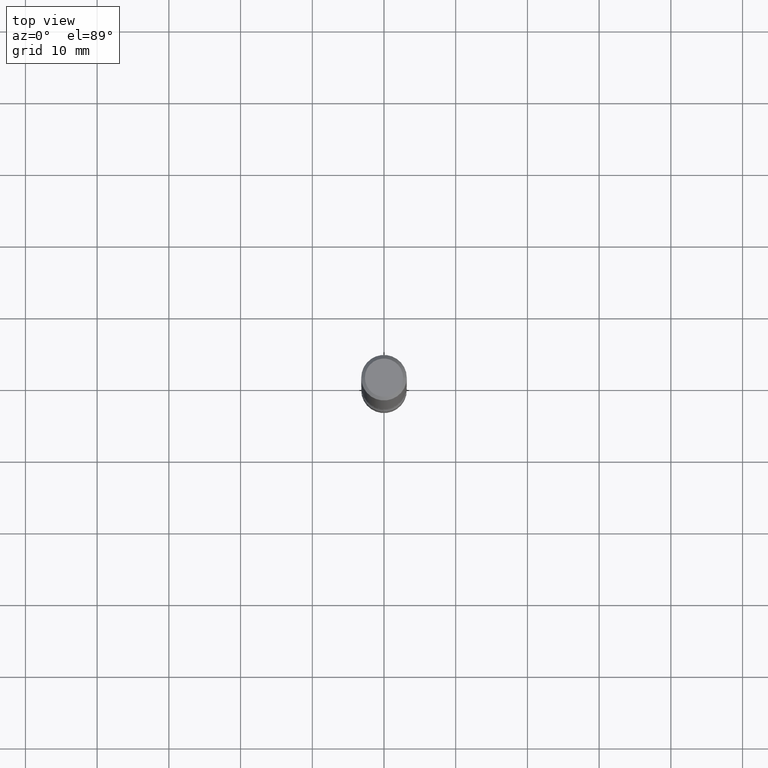
[diagram: clean part render]
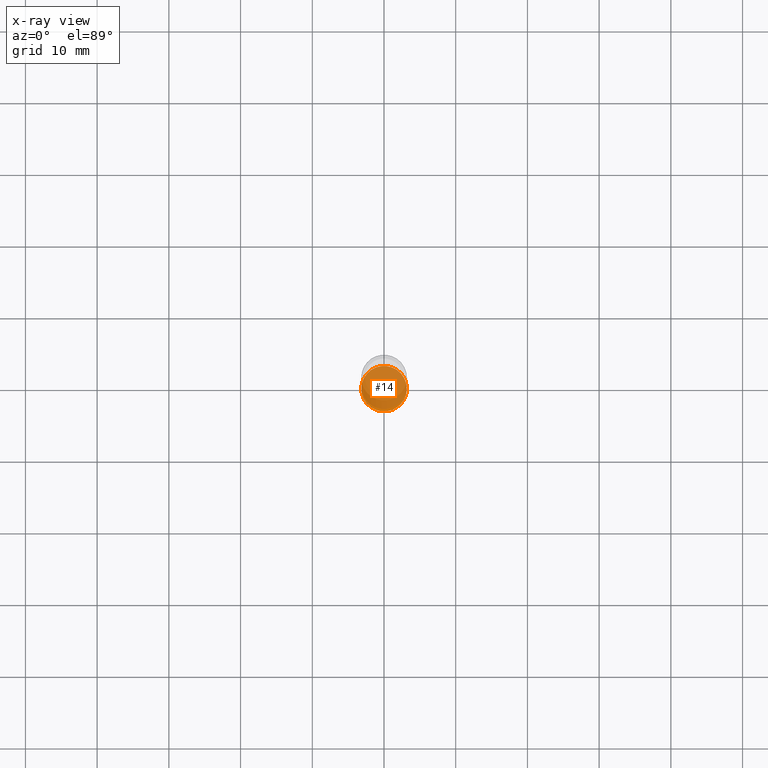
[diagram: x-ray — body ghosted, one internal face saturated and labeled with its STEP entity id]
A machine part, top view, then the same camera in x-ray: the body is ghosted and one INTERNAL B-rep face — a face not visible from any outside direction — is saturated and labeled: STEP entity #14.
In plain terms, the highlighted planar face has unit normal (0, -0, -1).
Its self-contained STEP definition (entity closure, byte-faithful):
#14 = ADVANCED_FACE ( 'NONE', ( #505 ), #41, .F. ) ;
#30 = AXIS2_PLACEMENT_3D ( 'NONE', #172, #335, #213 ) ;
#41 = PLANE ( 'NONE',  #30 ) ;
#44 = EDGE_LOOP ( 'NONE', ( #373, #478 ) ) ;
#83 = CARTESIAN_POINT ( 'NONE',  ( 8.559140821647976968E-29, -1.222018468595100619E-14, -3.499999999999999112 ) ) ;
#95 = AXIS2_PLACEMENT_3D ( 'NONE', #273, #112, #239 ) ;
#96 = AXIS2_PLACEMENT_3D ( 'NONE', #83, #374, #422 ) ;
#112 = DIRECTION ( 'NONE',  ( -2.445468806185136597E-29, 3.491481338843145583E-15, 1.000000000000000000 ) ) ;
#172 = CARTESIAN_POINT ( 'NONE',  ( 1.924192066693497233E-28, 3.078164078568847721E-15, -3.499999999999999112 ) ) ;
#213 = DIRECTION ( 'NONE',  ( -1.000000000000000000, 6.982962677686265922E-15, -4.876176775795935793E-29 ) ) ;
#215 = CARTESIAN_POINT ( 'NONE',  ( -0.1250000000000001665, -1.216996178757323895E-14, -3.499999999999999112 ) ) ;
#239 = DIRECTION ( 'NONE',  ( 1.000000000000000000, -6.982962677686269077E-15, 0.000000000000000000 ) ) ;
#273 = CARTESIAN_POINT ( 'NONE',  ( 8.559140821647976968E-29, -1.222018468595100619E-14, -3.499999999999999112 ) ) ;
#335 = DIRECTION ( 'NONE',  ( 2.438088387897960049E-29, -3.491481338843145188E-15, -1.000000000000000000 ) ) ;
#349 = EDGE_CURVE ( 'NONE', #459, #434, #414, .T. ) ;
#373 = ORIENTED_EDGE ( 'NONE', *, *, #536, .T. ) ;
#374 = DIRECTION ( 'NONE',  ( -2.445468806185136597E-29, 3.491481338843145583E-15, 1.000000000000000000 ) ) ;
#414 = CIRCLE ( 'NONE', #95, 0.1250000000000001665 ) ;
#422 = DIRECTION ( 'NONE',  ( 1.000000000000000000, -6.982962677686269077E-15, 0.000000000000000000 ) ) ;
#434 = VERTEX_POINT ( 'NONE', #499 ) ;
#459 = VERTEX_POINT ( 'NONE', #215 ) ;
#462 = CIRCLE ( 'NONE', #96, 0.1250000000000001665 ) ;
#478 = ORIENTED_EDGE ( 'NONE', *, *, #349, .T. ) ;
#499 = CARTESIAN_POINT ( 'NONE',  ( 0.1250000000000001665, -1.309305502066179110E-14, -3.499999999999999112 ) ) ;
#505 = FACE_OUTER_BOUND ( 'NONE', #44, .T. ) ;
#536 = EDGE_CURVE ( 'NONE', #434, #459, #462, .T. ) ;